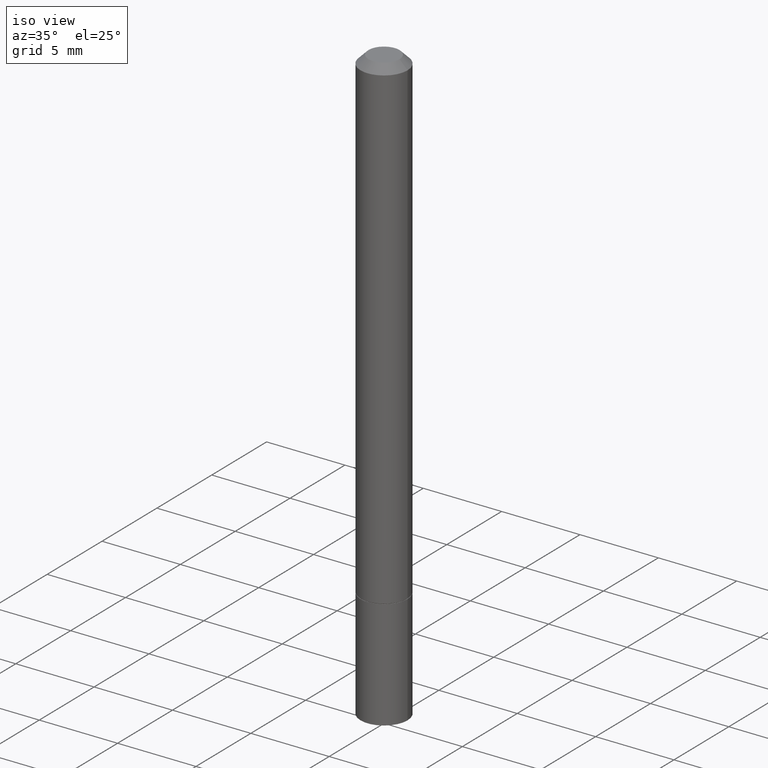
[diagram: clean part render]
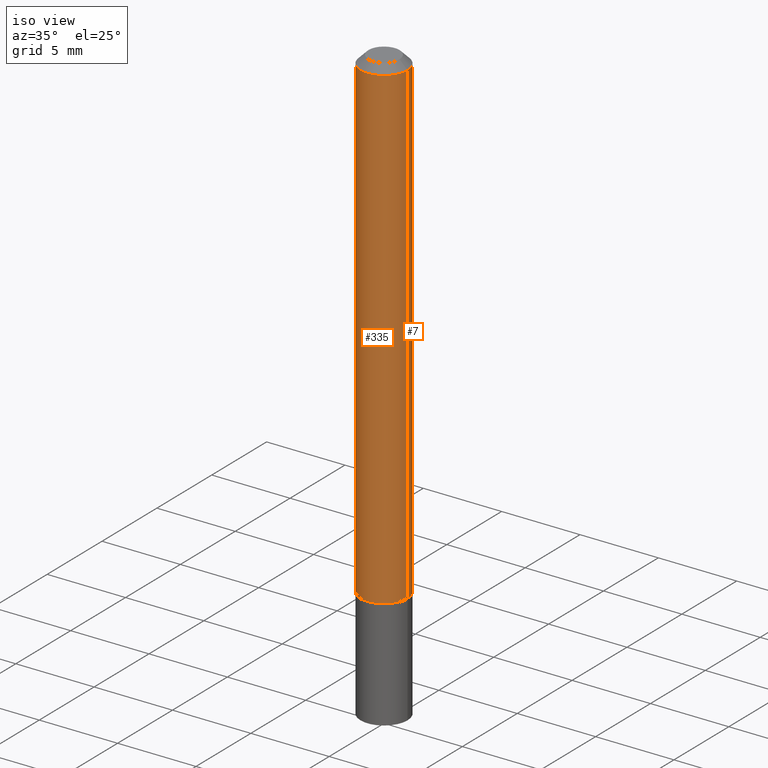
[diagram: same view with one multi-face feature highlighted, each face labeled with its STEP entity id]
A machine part, iso view. The highlighted faces form ONE feature: a constant-radius fillet chain: 2 tangent blend faces with common blend radius 1.4999 mm. The faces share edges in the B-rep.
Their STEP definitions:
[1] entity #335 (Cylinder):
#3 = VERTEX_POINT ( 'NONE', #17 ) ;
#17 = CARTESIAN_POINT ( 'NONE',  ( -0.05904999999999994975, 3.425143193405105373E-16, -0.02000000000000006287 ) ) ;
#28 = AXIS2_PLACEMENT_3D ( 'NONE', #58, #241, #364 ) ;
#30 = CARTESIAN_POINT ( 'NONE',  ( 0.05904999999999994975, -4.749420335452716734E-16, -0.02000000000000006287 ) ) ;
#36 = CARTESIAN_POINT ( 'NONE',  ( 0.000000000000000000, 0.000000000000000000, 0.000000000000000000 ) ) ;
#39 = LINE ( 'NONE', #65, #339 ) ;
#58 = CARTESIAN_POINT ( 'NONE',  ( 4.890937612370288923E-31, -6.982962677686312563E-17, -0.02000000000000006287 ) ) ;
#62 = CARTESIAN_POINT ( 'NONE',  ( 0.05905000000000001914, -4.123439461173741806E-16, 2.879382386107500921E-30 ) ) ;
#65 = CARTESIAN_POINT ( 'NONE',  ( -0.05905000000000001914, 4.195754854663392958E-16, -2.904631170795522943E-30 ) ) ;
#73 = EDGE_CURVE ( 'NONE', #322, #238, #332, .T. ) ;
#78 = EDGE_CURVE ( 'NONE', #3, #324, #363, .T. ) ;
#85 = DIRECTION ( 'NONE',  ( -2.445468806185136597E-29, 3.491481338843145583E-15, 1.000000000000000000 ) ) ;
#91 = CARTESIAN_POINT ( 'NONE',  ( -0.05905000000000008159, -1.744270074281697603E-15, -1.219500000000000028 ) ) ;
#118 = CARTESIAN_POINT ( 'NONE',  ( 0.05905000000000008159, -4.670205438836590941E-15, -1.219500000000000028 ) ) ;
#132 = ORIENTED_EDGE ( 'NONE', *, *, #274, .F. ) ;
#136 = CARTESIAN_POINT ( 'NONE',  ( 2.982249209142773869E-29, -4.257861492719216020E-15, -1.219500000000000028 ) ) ;
#143 = VECTOR ( 'NONE', #342, 39.37007874015748143 ) ;
#145 = DIRECTION ( 'NONE',  ( 1.000000000000000000, -6.982962677686266711E-15, 4.876176775795935793E-29 ) ) ;
#150 = DIRECTION ( 'NONE',  ( -2.445468806185136877E-29, 3.491481338843145188E-15, 1.000000000000000000 ) ) ;
#155 = EDGE_LOOP ( 'NONE', ( #132, #328, #262, #157 ) ) ;
#157 = ORIENTED_EDGE ( 'NONE', *, *, #78, .F. ) ;
#170 = CYLINDRICAL_SURFACE ( 'NONE', #268, 0.05905000000000001914 ) ;
#197 = DIRECTION ( 'NONE',  ( -2.445468806185136597E-29, 3.491481338843145583E-15, 1.000000000000000000 ) ) ;
#223 = LINE ( 'NONE', #62, #143 ) ;
#238 = VERTEX_POINT ( 'NONE', #118 ) ;
#241 = DIRECTION ( 'NONE',  ( -2.445468806185136597E-29, 3.491481338843145583E-15, 1.000000000000000000 ) ) ;
#255 = EDGE_CURVE ( 'NONE', #238, #324, #223, .T. ) ;
#262 = ORIENTED_EDGE ( 'NONE', *, *, #255, .T. ) ;
#268 = AXIS2_PLACEMENT_3D ( 'NONE', #36, #197, #145 ) ;
#274 = EDGE_CURVE ( 'NONE', #322, #3, #39, .T. ) ;
#283 = FACE_OUTER_BOUND ( 'NONE', #155, .T. ) ;
#322 = VERTEX_POINT ( 'NONE', #91 ) ;
#324 = VERTEX_POINT ( 'NONE', #30 ) ;
#328 = ORIENTED_EDGE ( 'NONE', *, *, #73, .T. ) ;
#332 = CIRCLE ( 'NONE', #347, 0.05905000000000008159 ) ;
#335 = ADVANCED_FACE ( 'NONE', ( #283 ), #170, .T. ) ;
#337 = DIRECTION ( 'NONE',  ( 1.000000000000000000, -6.982962677686270655E-15, 0.000000000000000000 ) ) ;
#339 = VECTOR ( 'NONE', #150, 39.37007874015748143 ) ;
#342 = DIRECTION ( 'NONE',  ( -2.445468806185136877E-29, 3.491481338843145188E-15, 1.000000000000000000 ) ) ;
#347 = AXIS2_PLACEMENT_3D ( 'NONE', #136, #85, #337 ) ;
#363 = CIRCLE ( 'NONE', #28, 0.05904999999999994975 ) ;
#364 = DIRECTION ( 'NONE',  ( 1.000000000000000000, -6.982962677686266711E-15, 0.000000000000000000 ) ) ;
[2] entity #7 (Cylinder):
#1 = DIRECTION ( 'NONE',  ( 1.000000000000000000, -6.982962677686266711E-15, 0.000000000000000000 ) ) ;
#3 = VERTEX_POINT ( 'NONE', #17 ) ;
#4 = EDGE_CURVE ( 'NONE', #238, #322, #278, .T. ) ;
#7 = ADVANCED_FACE ( 'NONE', ( #359 ), #207, .T. ) ;
#13 = EDGE_LOOP ( 'NONE', ( #231, #41, #69, #234 ) ) ;
#17 = CARTESIAN_POINT ( 'NONE',  ( -0.05904999999999994975, 3.425143193405105373E-16, -0.02000000000000006287 ) ) ;
#18 = EDGE_CURVE ( 'NONE', #324, #3, #247, .T. ) ;
#30 = CARTESIAN_POINT ( 'NONE',  ( 0.05904999999999994975, -4.749420335452716734E-16, -0.02000000000000006287 ) ) ;
#35 = AXIS2_PLACEMENT_3D ( 'NONE', #105, #330, #77 ) ;
#39 = LINE ( 'NONE', #65, #339 ) ;
#41 = ORIENTED_EDGE ( 'NONE', *, *, #274, .T. ) ;
#52 = CARTESIAN_POINT ( 'NONE',  ( 2.982249209142773869E-29, -4.257861492719216020E-15, -1.219500000000000028 ) ) ;
#62 = CARTESIAN_POINT ( 'NONE',  ( 0.05905000000000001914, -4.123439461173741806E-16, 2.879382386107500921E-30 ) ) ;
#65 = CARTESIAN_POINT ( 'NONE',  ( -0.05905000000000001914, 4.195754854663392958E-16, -2.904631170795522943E-30 ) ) ;
#69 = ORIENTED_EDGE ( 'NONE', *, *, #18, .F. ) ;
#77 = DIRECTION ( 'NONE',  ( 1.000000000000000000, -6.982962677686266711E-15, 4.876176775795935793E-29 ) ) ;
#91 = CARTESIAN_POINT ( 'NONE',  ( -0.05905000000000008159, -1.744270074281697603E-15, -1.219500000000000028 ) ) ;
#95 = AXIS2_PLACEMENT_3D ( 'NONE', #134, #168, #1 ) ;
#105 = CARTESIAN_POINT ( 'NONE',  ( 0.000000000000000000, 0.000000000000000000, 0.000000000000000000 ) ) ;
#118 = CARTESIAN_POINT ( 'NONE',  ( 0.05905000000000008159, -4.670205438836590941E-15, -1.219500000000000028 ) ) ;
#134 = CARTESIAN_POINT ( 'NONE',  ( 4.890937612370288923E-31, -6.982962677686312563E-17, -0.02000000000000006287 ) ) ;
#143 = VECTOR ( 'NONE', #342, 39.37007874015748143 ) ;
#150 = DIRECTION ( 'NONE',  ( -2.445468806185136877E-29, 3.491481338843145188E-15, 1.000000000000000000 ) ) ;
#168 = DIRECTION ( 'NONE',  ( -2.445468806185136597E-29, 3.491481338843145583E-15, 1.000000000000000000 ) ) ;
#207 = CYLINDRICAL_SURFACE ( 'NONE', #35, 0.05905000000000001914 ) ;
#223 = LINE ( 'NONE', #62, #143 ) ;
#231 = ORIENTED_EDGE ( 'NONE', *, *, #4, .T. ) ;
#234 = ORIENTED_EDGE ( 'NONE', *, *, #255, .F. ) ;
#236 = DIRECTION ( 'NONE',  ( -2.445468806185136597E-29, 3.491481338843145583E-15, 1.000000000000000000 ) ) ;
#238 = VERTEX_POINT ( 'NONE', #118 ) ;
#247 = CIRCLE ( 'NONE', #95, 0.05904999999999994975 ) ;
#255 = EDGE_CURVE ( 'NONE', #238, #324, #223, .T. ) ;
#269 = DIRECTION ( 'NONE',  ( 1.000000000000000000, -6.982962677686270655E-15, 0.000000000000000000 ) ) ;
#274 = EDGE_CURVE ( 'NONE', #322, #3, #39, .T. ) ;
#278 = CIRCLE ( 'NONE', #357, 0.05905000000000008159 ) ;
#322 = VERTEX_POINT ( 'NONE', #91 ) ;
#324 = VERTEX_POINT ( 'NONE', #30 ) ;
#330 = DIRECTION ( 'NONE',  ( -2.445468806185136597E-29, 3.491481338843145583E-15, 1.000000000000000000 ) ) ;
#339 = VECTOR ( 'NONE', #150, 39.37007874015748143 ) ;
#342 = DIRECTION ( 'NONE',  ( -2.445468806185136877E-29, 3.491481338843145188E-15, 1.000000000000000000 ) ) ;
#357 = AXIS2_PLACEMENT_3D ( 'NONE', #52, #236, #269 ) ;
#359 = FACE_OUTER_BOUND ( 'NONE', #13, .T. ) ;